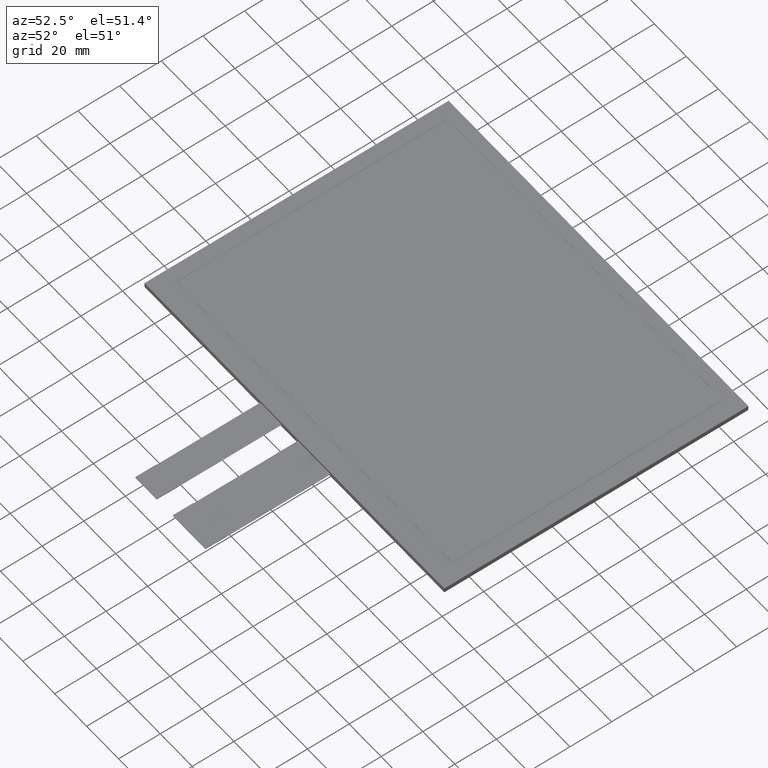
[diagram: clean part render]
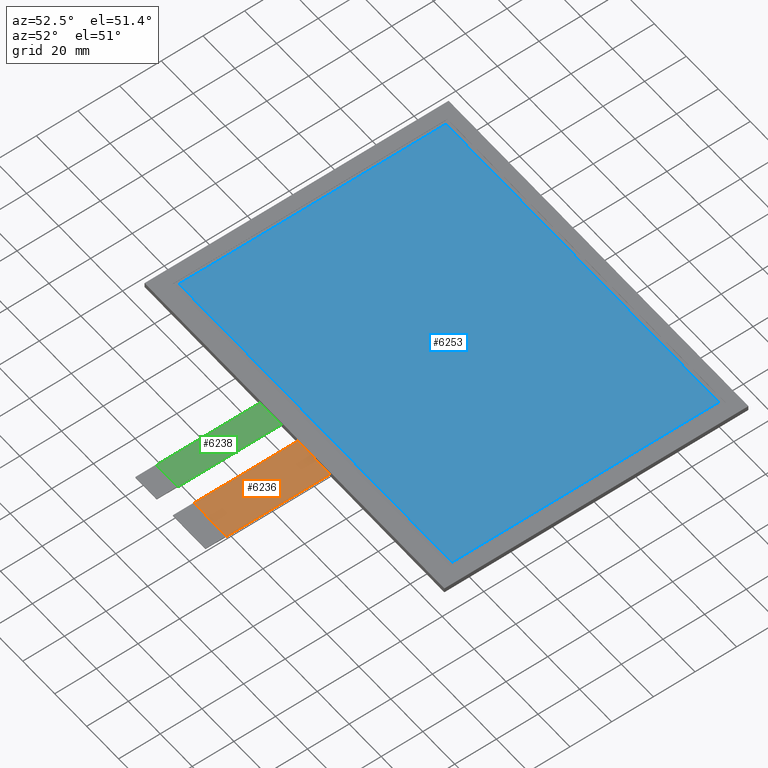
[diagram: same view with three faces highlighted in distinct colors, each labeled with its STEP entity id]
A machine part, auxiliary view with three faces highlighted in distinct colors.
Their STEP definitions:

[orange] entity #6236 — the highlighted planar face has unit normal (0, 0, 1).
#298=PLANE('',#6566);
#600=FACE_OUTER_BOUND('',#902,.T.);
#902=EDGE_LOOP('',(#5853,#5854,#5855,#5856));
#1757=LINE('',#9772,#2637);
#1759=LINE('',#9776,#2639);
#1764=LINE('',#9785,#2644);
#1765=LINE('',#9787,#2645);
#2637=VECTOR('',#7995,10.);
#2639=VECTOR('',#7999,10.);
#2644=VECTOR('',#8008,10.);
#2645=VECTOR('',#8011,10.);
#3255=VERTEX_POINT('',#9769);
#3256=VERTEX_POINT('',#9771);
#3257=VERTEX_POINT('',#9775);
#3259=VERTEX_POINT('',#9783);
#4125=EDGE_CURVE('',#3256,#3255,#1757,.T.);
#4127=EDGE_CURVE('',#3255,#3257,#1759,.T.);
#4132=EDGE_CURVE('',#3257,#3259,#1764,.T.);
#4133=EDGE_CURVE('',#3256,#3259,#1765,.T.);
#5853=ORIENTED_EDGE('',*,*,#4127,.T.);
#5854=ORIENTED_EDGE('',*,*,#4132,.T.);
#5855=ORIENTED_EDGE('',*,*,#4133,.F.);
#5856=ORIENTED_EDGE('',*,*,#4125,.T.);
#6236=ADVANCED_FACE('',(#600),#298,.T.);
#6566=AXIS2_PLACEMENT_3D('',#9786,#8009,#8010);
#7995=DIRECTION('',(4.20959563503705E-16,-1.,0.));
#7999=DIRECTION('',(1.,0.,0.));
#8008=DIRECTION('',(-1.48029736616688E-16,1.,0.));
#8009=DIRECTION('center_axis',(0.,0.,1.));
#8010=DIRECTION('ref_axis',(1.,0.,0.));
#8011=DIRECTION('',(1.,1.42032796327312E-16,0.));
#9769=CARTESIAN_POINT('',(2.02000000000003,-124.18,-1.1));
#9771=CARTESIAN_POINT('',(2.01999999999997,-74.18,-1.1));
#9772=CARTESIAN_POINT('',(2.01999999999997,-74.18,-1.1));
#9775=CARTESIAN_POINT('',(22.52,-124.18,-1.1));
#9776=CARTESIAN_POINT('',(17.395,-124.18,-1.1));
#9783=CARTESIAN_POINT('',(22.52,-74.18,-1.1));
#9785=CARTESIAN_POINT('',(22.52,-134.18,-1.1));
#9786=CARTESIAN_POINT('Origin',(12.27,-104.18,-1.1));
#9787=CARTESIAN_POINT('',(53.035,-74.18,-1.1));

[blue] entity #6253 — the highlighted planar face has unit normal (0, 0, 1).
#315=PLANE('',#6583);
#617=FACE_OUTER_BOUND('',#923,.T.);
#923=EDGE_LOOP('',(#5941,#5942,#5943,#5944));
#1769=LINE('',#9797,#2649);
#1773=LINE('',#9805,#2653);
#1776=LINE('',#9811,#2656);
#1779=LINE('',#9816,#2659);
#2649=VECTOR('',#8021,10.);
#2653=VECTOR('',#8027,10.);
#2656=VECTOR('',#8032,10.);
#2659=VECTOR('',#8037,10.);
#3261=VERTEX_POINT('',#9795);
#3262=VERTEX_POINT('',#9796);
#3265=VERTEX_POINT('',#9804);
#3267=VERTEX_POINT('',#9810);
#4137=EDGE_CURVE('',#3261,#3262,#1769,.T.);
#4141=EDGE_CURVE('',#3265,#3261,#1773,.T.);
#4144=EDGE_CURVE('',#3267,#3265,#1776,.T.);
#4147=EDGE_CURVE('',#3262,#3267,#1779,.T.);
#5941=ORIENTED_EDGE('',*,*,#4137,.T.);
#5942=ORIENTED_EDGE('',*,*,#4147,.T.);
#5943=ORIENTED_EDGE('',*,*,#4144,.T.);
#5944=ORIENTED_EDGE('',*,*,#4141,.T.);
#6253=ADVANCED_FACE('',(#617),#315,.T.);
#6583=AXIS2_PLACEMENT_3D('',#9868,#8083,#8084);
#8021=DIRECTION('',(1.,0.,0.));
#8027=DIRECTION('',(0.,-1.,0.));
#8032=DIRECTION('',(-1.,0.,0.));
#8037=DIRECTION('',(0.,1.,0.));
#8083=DIRECTION('center_axis',(0.,0.,1.));
#8084=DIRECTION('ref_axis',(1.,0.,0.));
#9795=CARTESIAN_POINT('',(-85.45,-64.1,0.));
#9796=CARTESIAN_POINT('',(85.45,-64.1,0.));
#9797=CARTESIAN_POINT('',(-42.725,-64.1,0.));
#9804=CARTESIAN_POINT('',(-85.45,64.1,0.));
#9805=CARTESIAN_POINT('',(-85.45,31.46,0.));
#9810=CARTESIAN_POINT('',(85.45,64.1,0.));
#9811=CARTESIAN_POINT('',(42.725,64.1,0.));
#9816=CARTESIAN_POINT('',(85.45,-32.64,0.));
#9868=CARTESIAN_POINT('Origin',(-1.77635683940025E-14,-1.17999999999998,
0.));

[green] entity #6238 — the highlighted planar face has unit normal (0, 0, 1).
#300=PLANE('',#6568);
#602=FACE_OUTER_BOUND('',#904,.T.);
#904=EDGE_LOOP('',(#5865,#5866,#5867,#5868));
#1751=LINE('',#9760,#2631);
#1761=LINE('',#9780,#2641);
#1767=LINE('',#9791,#2647);
#1768=LINE('',#9793,#2648);
#2631=VECTOR('',#7985,10.);
#2641=VECTOR('',#8003,10.);
#2647=VECTOR('',#8015,10.);
#2648=VECTOR('',#8018,10.);
#3251=VERTEX_POINT('',#9757);
#3252=VERTEX_POINT('',#9759);
#3258=VERTEX_POINT('',#9779);
#3260=VERTEX_POINT('',#9789);
#4119=EDGE_CURVE('',#3252,#3251,#1751,.T.);
#4129=EDGE_CURVE('',#3251,#3258,#1761,.T.);
#4135=EDGE_CURVE('',#3258,#3260,#1767,.T.);
#4136=EDGE_CURVE('',#3252,#3260,#1768,.T.);
#5865=ORIENTED_EDGE('',*,*,#4129,.T.);
#5866=ORIENTED_EDGE('',*,*,#4135,.T.);
#5867=ORIENTED_EDGE('',*,*,#4136,.F.);
#5868=ORIENTED_EDGE('',*,*,#4119,.T.);
#6238=ADVANCED_FACE('',(#602),#300,.T.);
#6568=AXIS2_PLACEMENT_3D('',#9792,#8016,#8017);
#7985=DIRECTION('',(6.66133814775094E-16,-1.,0.));
#8003=DIRECTION('',(1.,0.,0.));
#8015=DIRECTION('',(-2.22044604925031E-16,1.,0.));
#8016=DIRECTION('center_axis',(0.,0.,1.));
#8017=DIRECTION('ref_axis',(1.,0.,0.));
#8018=DIRECTION('',(1.,1.42032796327312E-16,0.));
#9757=CARTESIAN_POINT('',(-21.4799999999999,-124.18,-1.1));
#9759=CARTESIAN_POINT('',(-21.48,-74.18,-1.1));
#9760=CARTESIAN_POINT('',(-21.48,-74.18,-1.1));
#9779=CARTESIAN_POINT('',(-7.97999999999997,-124.18,-1.1));
#9780=CARTESIAN_POINT('',(-11.355,-124.18,-1.1));
#9789=CARTESIAN_POINT('',(-7.98,-74.18,-1.1));
#9791=CARTESIAN_POINT('',(-7.97999999999999,-134.18,-1.1));
#9792=CARTESIAN_POINT('Origin',(-14.73,-104.18,-1.1));
#9793=CARTESIAN_POINT('',(39.535,-74.18,-1.1));